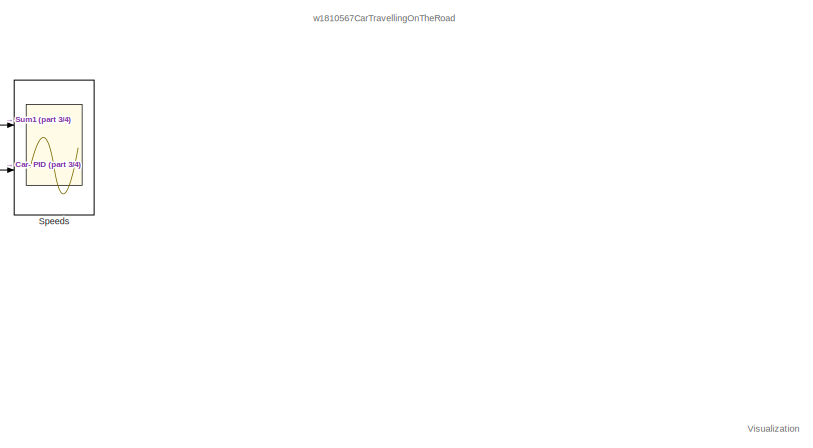
[diagram: root canvas - part 1/4, top center region]
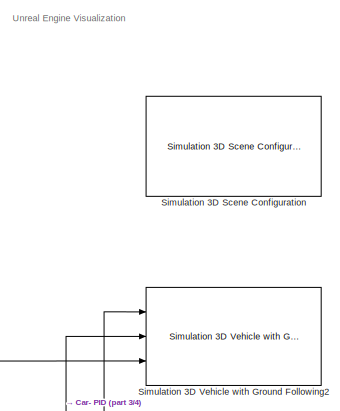
[diagram: root canvas - part 2/4, middle right region]
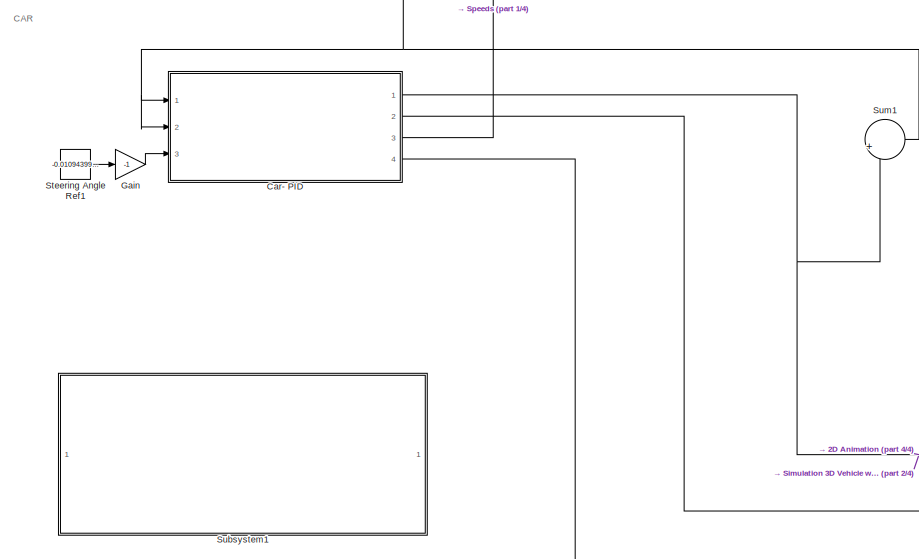
[diagram: root canvas - part 3/4, bottom left region]
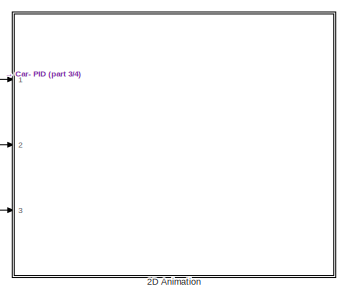
[diagram: root canvas - part 4/4, bottom right region]
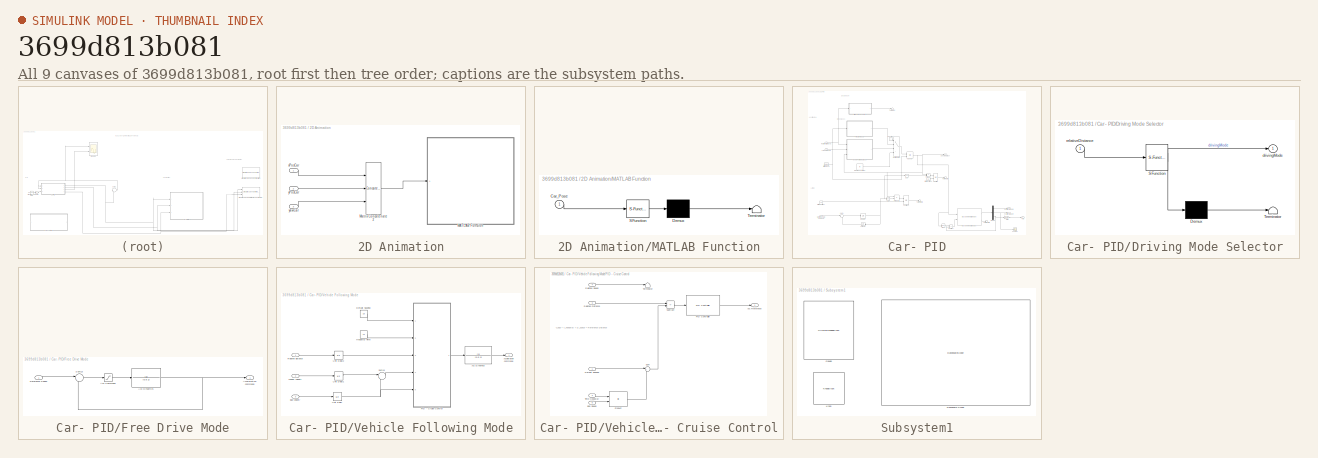
[diagram: thumbnail index - all 9 canvases of the model, root first then tree order]
MODEL slx_3699d813b081
KIND model
CONFIG AbsTol = auto
CONFIG EnableMultiTasking = off
CONFIG FixedStep = auto
CONFIG MaxStep = auto
CONFIG MinStep = auto
CONFIG RelTol = 1e-3
CONFIG SampleTimeConstraint = Unconstrained
CONFIG SolverName = VariableStepAuto
CONFIG StartTime = 0.0
CONFIG StopTime = 50
BLOCK [SubSystem] 2D Animation
  Commented = on
  Ports = [3]
  RequestExecContextInheritance = off
  SystemSampleTime = 0.02
  TreatAsAtomicUnit = on
BLOCK [SubSystem] 2D Animation/MATLAB Function
  ErrorFcn = Stateflow.Translate.translate
  PermitHierarchicalResolution = ExplicitOnly
  Ports = [1]
  RequestExecContextInheritance = off
  SFBlockType = MATLAB Function
  TreatAsAtomicUnit = on
BLOCK [Demux] 2D Animation/MATLAB Function/ Demux 
  Outputs = 1
  Ports = [1, 1]
BLOCK [S-Function] 2D Animation/MATLAB Function/ SFunction 
  EnableBusSupport = on
  FunctionName = sf_sfun
  PortCounts = [1 1]
  Ports = [1, 1]
  SFcnIsStateOwnerBlock = off
  SFunctionDeploymentMode = off
  Tag = Stateflow S-Function 2
BLOCK [Terminator] 2D Animation/MATLAB Function/ Terminator 
BLOCK [Inport] 2D Animation/MATLAB Function/Car_Pose
BLOCK [Concatenate] 2D Animation/Matrix Concatenate2
  ConcatenateDimension = 2
  NumInputs = 3
  Ports = [3, 1]
BLOCK [Inport] 2D Animation/xPosCar
BLOCK [Inport] 2D Animation/yPosCar
  Port = 2
BLOCK [Inport] 2D Animation/yawCar
  Port = 3
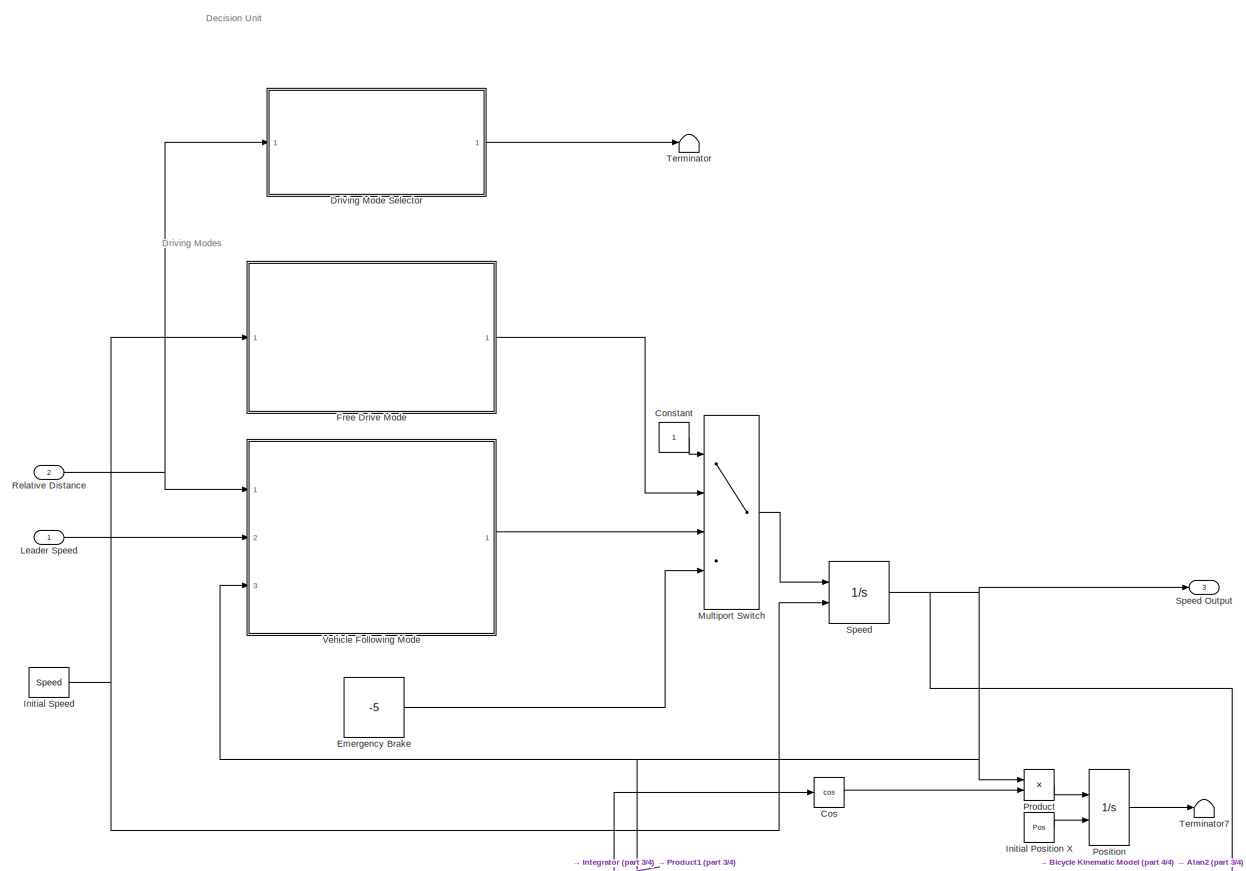
[diagram: Car- PID - part 1/4, top center region]
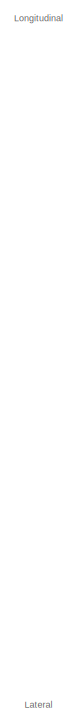
[diagram: Car- PID - part 2/4, middle left region]
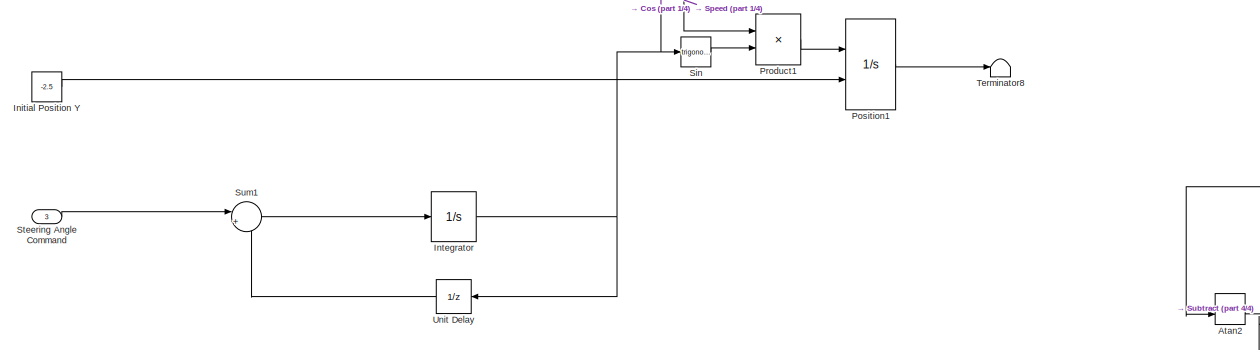
[diagram: Car- PID - part 3/4, bottom center region]
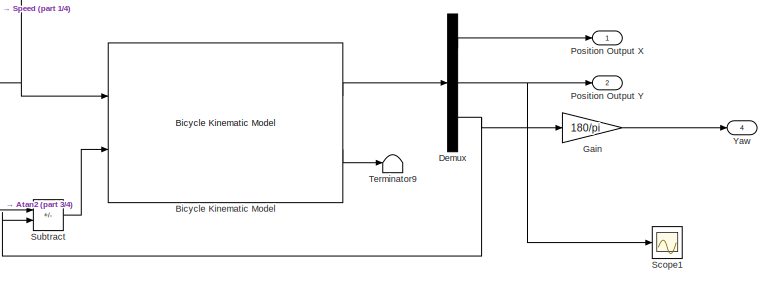
[diagram: Car- PID - part 4/4, bottom right region]
BLOCK [SubSystem] Car- PID
  Ports = [3, 4]
  RequestExecContextInheritance = off
BLOCK [Trigonometry] Car- PID/Atan2
  Operator = atan2
  Ports = [2, 1]
BLOCK [Reference] Car- PID/Bicycle Kinematic Model  REF=robotmobilelib/Bicycle Kinematic Model
  Ports = [2, 2]
  SourceBlock = robotmobilelib/Bicycle Kinematic Model
  SourceProductBaseCode = RO
  SourceType = Bicycle Kinematic Model
BLOCK [Constant] Car- PID/Constant
BLOCK [Trigonometry] Car- PID/Cos
  Operator = cos
  Ports = [1, 1]
BLOCK [Demux] Car- PID/Demux
  Outputs = 3
  Ports = [1, 3]
BLOCK [SubSystem] Car- PID/Driving Mode Selector
  ErrorFcn = Stateflow.Translate.translate
  PermitHierarchicalResolution = ExplicitOnly
  Ports = [1, 1]
  RequestExecContextInheritance = off
  SFBlockType = Chart
  TreatAsAtomicUnit = on
BLOCK [Demux] Car- PID/Driving Mode Selector/ Demux 
  Outputs = 1
  Ports = [1, 1]
BLOCK [S-Function] Car- PID/Driving Mode Selector/ SFunction 
  EnableBusSupport = on
  FunctionName = sf_sfun
  PortCounts = [1 2]
  Ports = [1, 2]
  SFcnIsStateOwnerBlock = off
  SFunctionDeploymentMode = off
  Tag = Stateflow S-Function 1
BLOCK [Terminator] Car- PID/Driving Mode Selector/ Terminator 
BLOCK [Outport] Car- PID/Driving Mode Selector/drivingMode
BLOCK [Inport] Car- PID/Driving Mode Selector/relativeDistance
BLOCK [Constant] Car- PID/Emergency Brake
  Value = -5
BLOCK [SubSystem] Car- PID/Free Drive Mode
  Ports = [1, 1]
  RequestExecContextInheritance = off
BLOCK [Saturate] Car- PID/Free Drive Mode/Acc Command
  LowerLimit = -3
  UpperLimit = 2
BLOCK [TransferFcn] Car- PID/Free Drive Mode/Acc Dynamics
  Denominator = [0.5 1]
BLOCK [Outport] Car- PID/Free Drive Mode/Acceleration command
BLOCK [Inport] Car- PID/Free Drive Mode/Reference Speed
BLOCK [Sum] Car- PID/Free Drive Mode/Sum13
  Inputs = |+-
  Ports = [2, 1]
BLOCK [Gain] Car- PID/Gain
  Gain = 180/pi
BLOCK [Constant] Car- PID/Initial Position X
  Value = Pos
BLOCK [Constant] Car- PID/Initial Position Y
  Value = -2.5
BLOCK [Constant] Car- PID/Initial Speed
  Value = Speed
BLOCK [Integrator] Car- PID/Integrator
  Ports = [1, 1]
BLOCK [Inport] Car- PID/Leader Speed
BLOCK [MultiPortSwitch] Car- PID/Multiport Switch
  InputSameDT = off
  Ports = [4, 1]
  SaturateOnIntegerOverflow = off
BLOCK [Integrator] Car- PID/Position
  InitialConditionSource = external
  Ports = [2, 1]
BLOCK [Outport] Car- PID/Position Output X
  VectorParamsAs1DForOutWhenUnconnected = off
BLOCK [Outport] Car- PID/Position Output Y
  Port = 2
  VectorParamsAs1DForOutWhenUnconnected = off
BLOCK [Integrator] Car- PID/Position1
  InitialConditionSource = external
  Ports = [2, 1]
BLOCK [Product] Car- PID/Product
  Ports = [2, 1]
BLOCK [Product] Car- PID/Product1
  Ports = [2, 1]
BLOCK [Inport] Car- PID/Relative Distance
  Port = 2
BLOCK [Scope] Car- PID/Scope1
  Floating = off
  NumInputPorts = 1
  Ports = [1]
  ScopeSpecificationString = Simulink.scopes.TimeScopeBlockCfg('CurrentConfiguration', extmgr.ConfigurationSet(extmgr.Configuration('Core','General UI',true),extmgr.Configuration('Core','Source UI',true),extmgr.Configuration('Sources','WiredSimulink',true,'DataLoggingVariableName','ScopeData2'),extmgr.Configuration('Visuals','Time Domain',true,'SerializedDisplays',{struct('MinYLimReal','-3.62379','MaxYLimReal','2.61411','YLab...<+1366ch>
BLOCK [Trigonometry] Car- PID/Sin
  Ports = [1, 1]
BLOCK [Integrator] Car- PID/Speed
  InitialConditionSource = external
  LimitOutput = on
  LowerSaturationLimit = 0
  Ports = [2, 1]
  UpperSaturationLimit = 12
BLOCK [Outport] Car- PID/Speed Output
  Port = 3
  VectorParamsAs1DForOutWhenUnconnected = off
BLOCK [Inport] Car- PID/Steering Angle Command
  Port = 3
BLOCK [Sum] Car- PID/Subtract
  IconShape = rectangular
  Inputs = +-
  Ports = [2, 1]
BLOCK [Sum] Car- PID/Sum1
  Inputs = |+-
  Ports = [2, 1]
BLOCK [Terminator] Car- PID/Terminator
BLOCK [Terminator] Car- PID/Terminator7
BLOCK [Terminator] Car- PID/Terminator8
BLOCK [Terminator] Car- PID/Terminator9
BLOCK [UnitDelay] Car- PID/Unit Delay
  HasFrameUpgradeWarning = on
  NameLocation = top
  SampleTime = -1
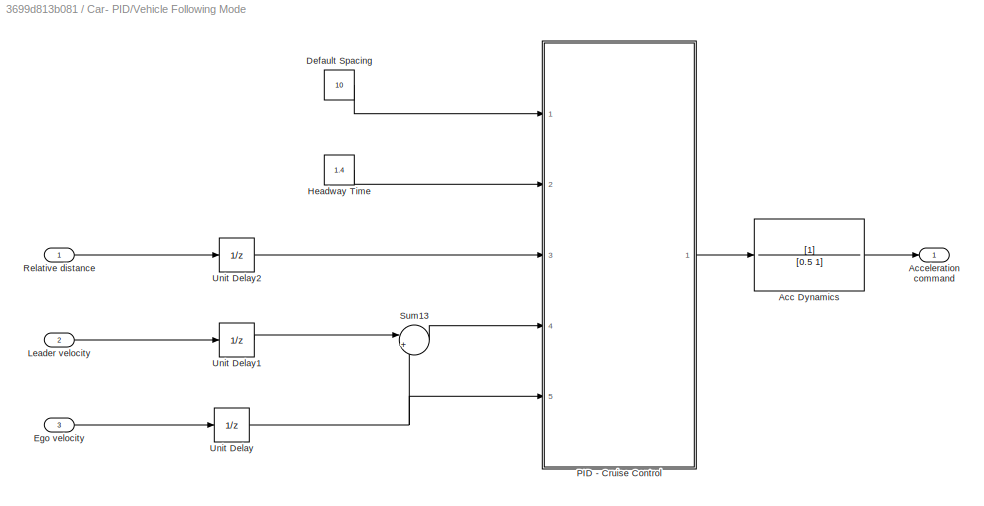
BLOCK [SubSystem] Car- PID/Vehicle Following Mode
  Ports = [3, 1]
  RequestExecContextInheritance = off
BLOCK [TransferFcn] Car- PID/Vehicle Following Mode/Acc Dynamics
  Denominator = [0.5 1]
BLOCK [Outport] Car- PID/Vehicle Following Mode/Acceleration command
BLOCK [Constant] Car- PID/Vehicle Following Mode/Default Spacing
  Value = 10
BLOCK [Inport] Car- PID/Vehicle Following Mode/Ego velocity
  NameLocation = top
  Port = 3
BLOCK [Constant] Car- PID/Vehicle Following Mode/Headway Time
  Value = 1.4
BLOCK [Inport] Car- PID/Vehicle Following Mode/Leader velocity
  Port = 2
BLOCK [SubSystem] Car- PID/Vehicle Following Mode/PID - Cruise Control
  Ports = [5, 1]
  RequestExecContextInheritance = off
BLOCK [Outport] Car- PID/Vehicle Following Mode/PID - Cruise Control/Acc Reference
BLOCK [Inport] Car- PID/Vehicle Following Mode/PID - Cruise Control/Default Spacing
BLOCK [Inport] Car- PID/Vehicle Following Mode/PID - Cruise Control/Ego Speed
  Port = 5
BLOCK [Reference] Car- PID/Vehicle Following Mode/PID - Cruise Control/PID Controller  REF=slpidlib/PID Controller
  Ports = [1, 1]
  SourceBlock = slpidlib/PID Controller
  SourceProductBaseCode = SL
  SourceType = PID 1dof
BLOCK [Product] Car- PID/Vehicle Following Mode/PID - Cruise Control/Product
  Ports = [2, 1]
BLOCK [Inport] Car- PID/Vehicle Following Mode/PID - Cruise Control/Relative Distance
  Port = 3
BLOCK [Inport] Car- PID/Vehicle Following Mode/PID - Cruise Control/Relative Speed
  Port = 4
BLOCK [Sum] Car- PID/Vehicle Following Mode/PID - Cruise Control/Subtract
  IconShape = rectangular
  Inputs = +-
  Ports = [2, 1]
BLOCK [Sum] Car- PID/Vehicle Following Mode/PID - Cruise Control/Sum
  Inputs = |++
  Ports = [2, 1]
BLOCK [Terminator] Car- PID/Vehicle Following Mode/PID - Cruise Control/Terminator
BLOCK [Inport] Car- PID/Vehicle Following Mode/PID - Cruise Control/Time Headway
  Port = 2
BLOCK [Inport] Car- PID/Vehicle Following Mode/Relative distance
BLOCK [Sum] Car- PID/Vehicle Following Mode/Sum13
  Inputs = |+-
  Ports = [2, 1]
BLOCK [UnitDelay] Car- PID/Vehicle Following Mode/Unit Delay
  HasFrameUpgradeWarning = on
  SampleTime = -1
BLOCK [UnitDelay] Car- PID/Vehicle Following Mode/Unit Delay1
  HasFrameUpgradeWarning = on
  SampleTime = -1
BLOCK [UnitDelay] Car- PID/Vehicle Following Mode/Unit Delay2
  HasFrameUpgradeWarning = on
  SampleTime = -1
BLOCK [Outport] Car- PID/Yaw
  Port = 4
  VectorParamsAs1DForOutWhenUnconnected = off
BLOCK [Gain] Gain
  Gain = -1
BLOCK [Reference] Simulation 3D Scene Configuration  REF=sim3dlib/Simulation 3D Scene Configuration
  Ports = []
  Priority = 0
  SourceBlock = sim3dlib/Simulation 3D Scene Configuration
  SourceProductBaseCode = AE,DR,UV,VE
  SourceType = Simulation 3D Scene Configuration
BLOCK [Reference] Simulation 3D Vehicle with Ground Following2  REF=sim3dautolib/Simulation 3D Vehicle with Ground Following
  Ports = [3]
  Priority = -1
  SourceBlock = sim3dautolib/Simulation 3D Vehicle with Ground Following
  SourceProductBaseCode = AE,DR,UV,VE
  SourceType = Simulation 3D Vehicle with Ground Following
BLOCK [Scope] Speeds
  Floating = off
  NumInputPorts = 2
  Ports = [2]
  ScopeSpecificationString = Simulink.scopes.TimeScopeBlockCfg('CurrentConfiguration', extmgr.ConfigurationSet(extmgr.Configuration('Core','General UI',true),extmgr.Configuration('Core','Source UI',true),extmgr.Configuration('Sources','WiredSimulink',true,'DataLoggingVariableName','ScopeData2'),extmgr.Configuration('Visuals','Time Domain',true,'SerializedDisplays',{struct('MinYLimReal','-100.6992','MaxYLimReal','24.52213','YL...<+1509ch>
BLOCK [Constant] Steering Angle Ref1
  Value = -0.01094399007161456
BLOCK [SubSystem] Subsystem1
  Ports = []
  RequestExecContextInheritance = off
BLOCK [DashboardScope] Subsystem1/Dashboard Scope
BLOCK [CircularGaugeBlock] Subsystem1/Gauge
BLOCK [KnobBlock] Subsystem1/Knob
  ScaleMax = 0.2
  ScaleMin = -0.2
BLOCK [Sum] Sum1
  Inputs = |+-
  Ports = [2, 1]
ANNOTATION (root): w1810567CarTravellingOnTheRoad
ANNOTATION (root): CAR
ANNOTATION (root): Unreal Engine Visualization
ANNOTATION (root): Visualization
ANNOTATION Car- PID: Decision Unit
ANNOTATION Car- PID: Driving Modes
ANNOTATION Car- PID: Lateral
ANNOTATION Car- PID: Longitudinal
ANNOTATION Car- PID/Vehicle Following Mode/PID - Cruise Control: V_ego * t_headway + D_space = Reference Distance
LINE 2D Animation/Matrix Concatenate2:1 -> 2D Animation/MATLAB Function:1
LINE 2D Animation/xPosCar:1 -> 2D Animation/Matrix Concatenate2:1
LINE 2D Animation/yPosCar:1 -> 2D Animation/Matrix Concatenate2:2
LINE 2D Animation/yawCar:1 -> 2D Animation/Matrix Concatenate2:3
LINE Car- PID/Atan2:1 -> Car- PID/Subtract:1
LINE Car- PID/Bicycle Kinematic Model:1 -> Car- PID/Demux:1
LINE Car- PID/Bicycle Kinematic Model:2 -> Car- PID/Terminator9:1
LINE Car- PID/Constant:1 -> Car- PID/Multiport Switch:1
LINE Car- PID/Cos:1 -> Car- PID/Product:2
LINE Car- PID/Demux:1 -> Car- PID/Position Output X:1
NET Car- PID/Demux:2 -> Car- PID/Position Output Y:1, Car- PID/Scope1:1
NET Car- PID/Demux:3 -> Car- PID/Gain:1, Car- PID/Subtract:2
LINE Car- PID/Driving Mode Selector:1 -> Car- PID/Terminator:1
LINE Car- PID/Emergency Brake:1 -> Car- PID/Multiport Switch:4
LINE Car- PID/Free Drive Mode/Acc Command:1 -> Car- PID/Free Drive Mode/Acc Dynamics:1
NET Car- PID/Free Drive Mode/Acc Dynamics:1 -> Car- PID/Free Drive Mode/Acceleration command:1, Car- PID/Free Drive Mode/Sum13:2
LINE Car- PID/Free Drive Mode/Reference Speed:1 -> Car- PID/Free Drive Mode/Sum13:1
LINE Car- PID/Free Drive Mode/Sum13:1 -> Car- PID/Free Drive Mode/Acc Command:1
LINE Car- PID/Free Drive Mode:1 -> Car- PID/Multiport Switch:2
LINE Car- PID/Gain:1 -> Car- PID/Yaw:1
LINE Car- PID/Initial Position X:1 -> Car- PID/Position:2
LINE Car- PID/Initial Position Y:1 -> Car- PID/Position1:2
NET Car- PID/Initial Speed:1 -> Car- PID/Free Drive Mode:1, Car- PID/Speed:2
NET Car- PID/Integrator:1 -> Car- PID/Cos:1, Car- PID/Sin:1, Car- PID/Unit Delay:1
LINE Car- PID/Leader Speed:1 -> Car- PID/Vehicle Following Mode:2
LINE Car- PID/Multiport Switch:1 -> Car- PID/Speed:1
LINE Car- PID/Position1:1 -> Car- PID/Terminator8:1
LINE Car- PID/Position:1 -> Car- PID/Terminator7:1
LINE Car- PID/Product1:1 -> Car- PID/Position1:1
LINE Car- PID/Product:1 -> Car- PID/Position:1
NET Car- PID/Relative Distance:1 -> Car- PID/Driving Mode Selector:1, Car- PID/Vehicle Following Mode:1
LINE Car- PID/Sin:1 -> Car- PID/Product1:2
NET Car- PID/Speed:1 -> Car- PID/Atan2:2, Car- PID/Bicycle Kinematic Model:1, Car- PID/Product1:1, Car- PID/Product:1, Car- PID/Speed Output:1, Car- PID/Vehicle Following Mode:3
LINE Car- PID/Steering Angle Command:1 -> Car- PID/Sum1:1
LINE Car- PID/Subtract:1 -> Car- PID/Bicycle Kinematic Model:2
LINE Car- PID/Sum1:1 -> Car- PID/Integrator:1
LINE Car- PID/Unit Delay:1 -> Car- PID/Sum1:2
LINE Car- PID/Vehicle Following Mode/Acc Dynamics:1 -> Car- PID/Vehicle Following Mode/Acceleration command:1
LINE Car- PID/Vehicle Following Mode/Default Spacing:1 -> Car- PID/Vehicle Following Mode/PID - Cruise Control:1
LINE Car- PID/Vehicle Following Mode/Ego velocity:1 -> Car- PID/Vehicle Following Mode/Unit Delay:1
LINE Car- PID/Vehicle Following Mode/Headway Time:1 -> Car- PID/Vehicle Following Mode/PID - Cruise Control:2
LINE Car- PID/Vehicle Following Mode/Leader velocity:1 -> Car- PID/Vehicle Following Mode/Unit Delay1:1
LINE Car- PID/Vehicle Following Mode/PID - Cruise Control/Default Spacing:1 -> Car- PID/Vehicle Following Mode/PID - Cruise Control/Sum:1
LINE Car- PID/Vehicle Following Mode/PID - Cruise Control/Ego Speed:1 -> Car- PID/Vehicle Following Mode/PID - Cruise Control/Product:2
LINE Car- PID/Vehicle Following Mode/PID - Cruise Control/PID Controller:1 -> Car- PID/Vehicle Following Mode/PID - Cruise Control/Acc Reference:1
LINE Car- PID/Vehicle Following Mode/PID - Cruise Control/Product:1 -> Car- PID/Vehicle Following Mode/PID - Cruise Control/Sum:2
LINE Car- PID/Vehicle Following Mode/PID - Cruise Control/Relative Distance:1 -> Car- PID/Vehicle Following Mode/PID - Cruise Control/Subtract:1
LINE Car- PID/Vehicle Following Mode/PID - Cruise Control/Relative Speed:1 -> Car- PID/Vehicle Following Mode/PID - Cruise Control/Terminator:1
LINE Car- PID/Vehicle Following Mode/PID - Cruise Control/Subtract:1 -> Car- PID/Vehicle Following Mode/PID - Cruise Control/PID Controller:1
LINE Car- PID/Vehicle Following Mode/PID - Cruise Control/Sum:1 -> Car- PID/Vehicle Following Mode/PID - Cruise Control/Subtract:2
LINE Car- PID/Vehicle Following Mode/PID - Cruise Control/Time Headway:1 -> Car- PID/Vehicle Following Mode/PID - Cruise Control/Product:1
LINE Car- PID/Vehicle Following Mode/PID - Cruise Control:1 -> Car- PID/Vehicle Following Mode/Acc Dynamics:1
LINE Car- PID/Vehicle Following Mode/Relative distance:1 -> Car- PID/Vehicle Following Mode/Unit Delay2:1
LINE Car- PID/Vehicle Following Mode/Sum13:1 -> Car- PID/Vehicle Following Mode/PID - Cruise Control:4
LINE Car- PID/Vehicle Following Mode/Unit Delay1:1 -> Car- PID/Vehicle Following Mode/Sum13:1
LINE Car- PID/Vehicle Following Mode/Unit Delay2:1 -> Car- PID/Vehicle Following Mode/PID - Cruise Control:3
NET Car- PID/Vehicle Following Mode/Unit Delay:1 -> Car- PID/Vehicle Following Mode/PID - Cruise Control:5, Car- PID/Vehicle Following Mode/Sum13:2
LINE Car- PID/Vehicle Following Mode:1 -> Car- PID/Multiport Switch:3
NET Car- PID:1 -> 2D Animation:1, Simulation 3D Vehicle with Ground Following2:1, Sum1:2
NET Car- PID:2 -> 2D Animation:2, Simulation 3D Vehicle with Ground Following2:2
LINE Car- PID:3 -> Speeds:2
NET Car- PID:4 -> 2D Animation:3, Simulation 3D Vehicle with Ground Following2:3
LINE Gain:1 -> Car- PID:3
LINE Steering Angle Ref1:1 -> Gain:1
NET Sum1:1 -> Car- PID:1, Car- PID:2, Speeds:1
note: NET lines group one-source signal fan-out (src -> all destinations, sorted); 1:1 wires keep LINE
CHART Car- PID/Driving Mode Selector states=3 transitions=6
  STATE_LABEL 'VehicleFollowing\nentry:\ndrivingMode=2;'
  STATE_LABEL 'FreeDrive\nentry:\ndrivingMode =1;\n'
  STATE_LABEL 'EmergecyBrake\nentry:\ndrivingMode=3;'
CHART 2D Animation/MATLAB Function states=1 transitions=1
  STATE_LABEL 'eML_blk_kernel()'
  STATE_LABEL 'SCRIPT:\nfunction plotVehicle(Car_Pose)\n\n%% Car - Pose\nx = Car_Pose(1);\ny = Car_Pose(2);\nyaw = Car_Pose(3);\n\ncenterP = [x;y];\n\nCar_HalfLength = 2; % Length = 4m\nCar_HalfWidth = 1; % Width = 2m\n\n% Creating a rectangle\np1 = [Car_HalfLength; Car_HalfWidth];\np2 = [Car_HalfLength; -Car_HalfWidth];\np3 = [-Car_HalfLength; -Car_HalfWidth];\np4 = [-Car_HalfLength; Car_HalfWidth];\n\n% Rotation Matrix\nRmatrix =...<+641ch>'
CHART  states=0 transitions=0
CHART  states=0 transitions=0
